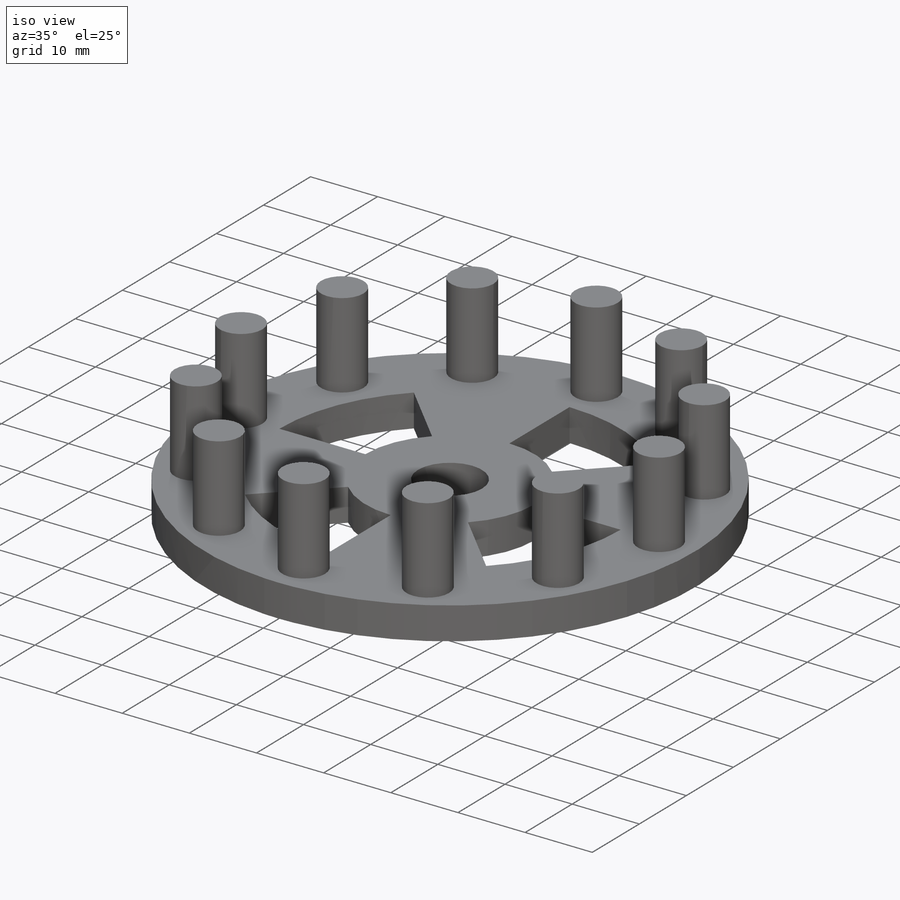
[diagram: iso view]
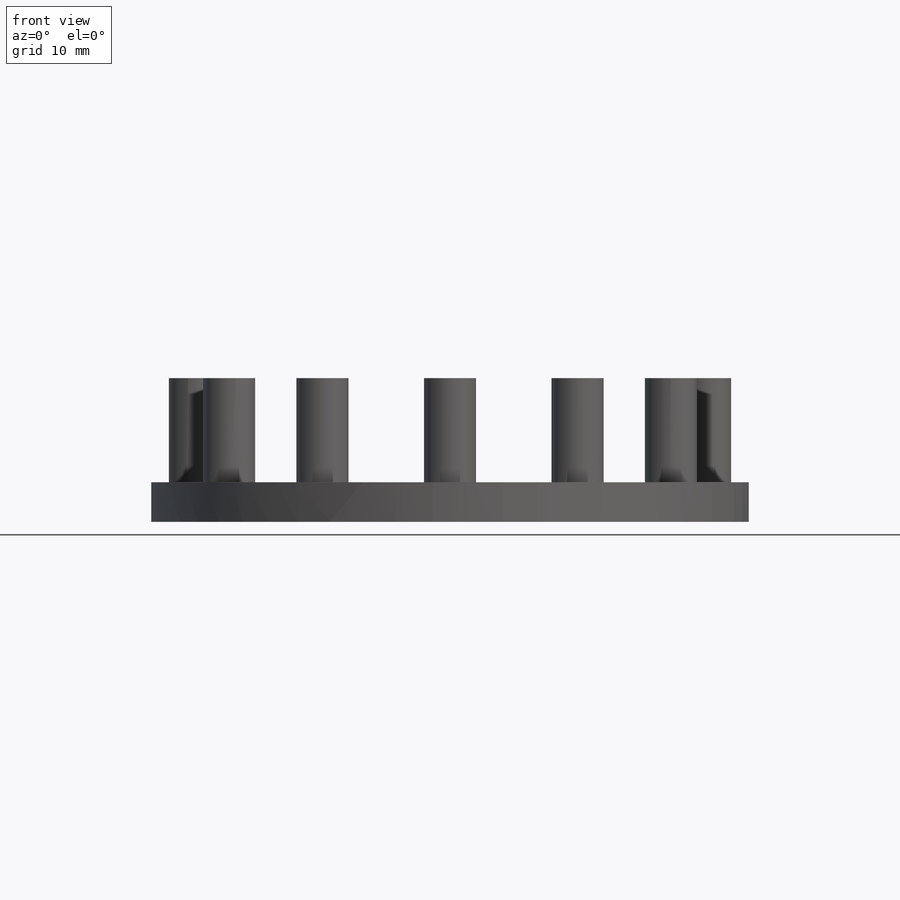
[diagram: front view]
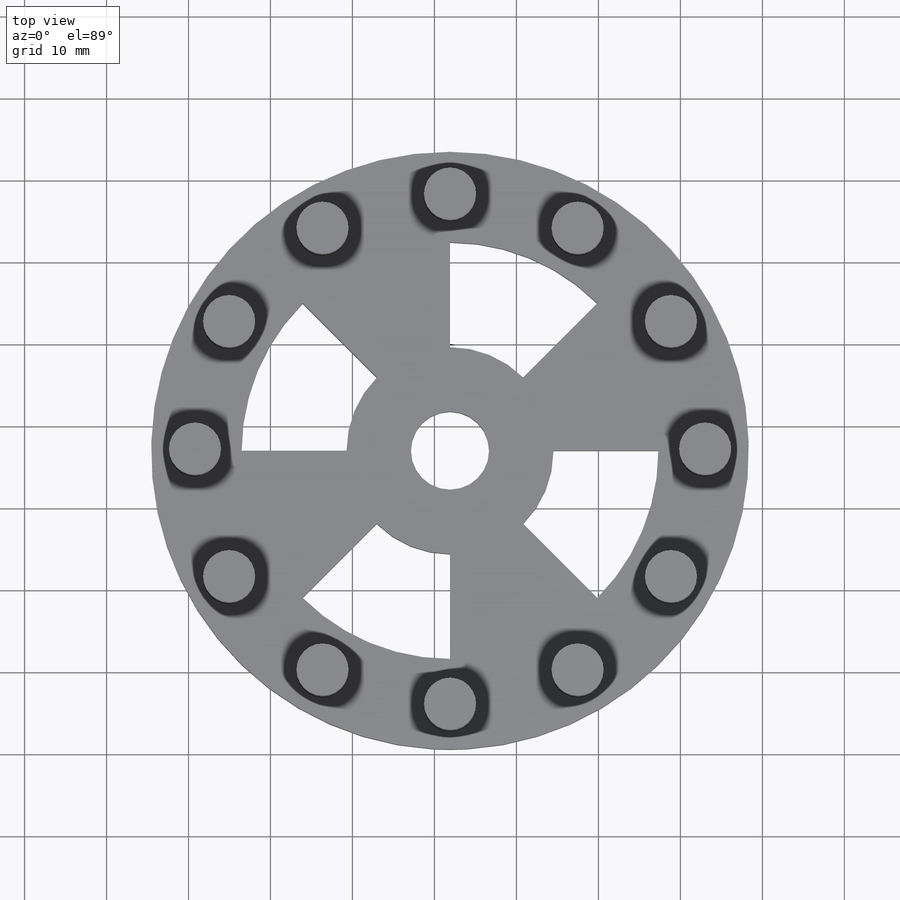
[diagram: top view]
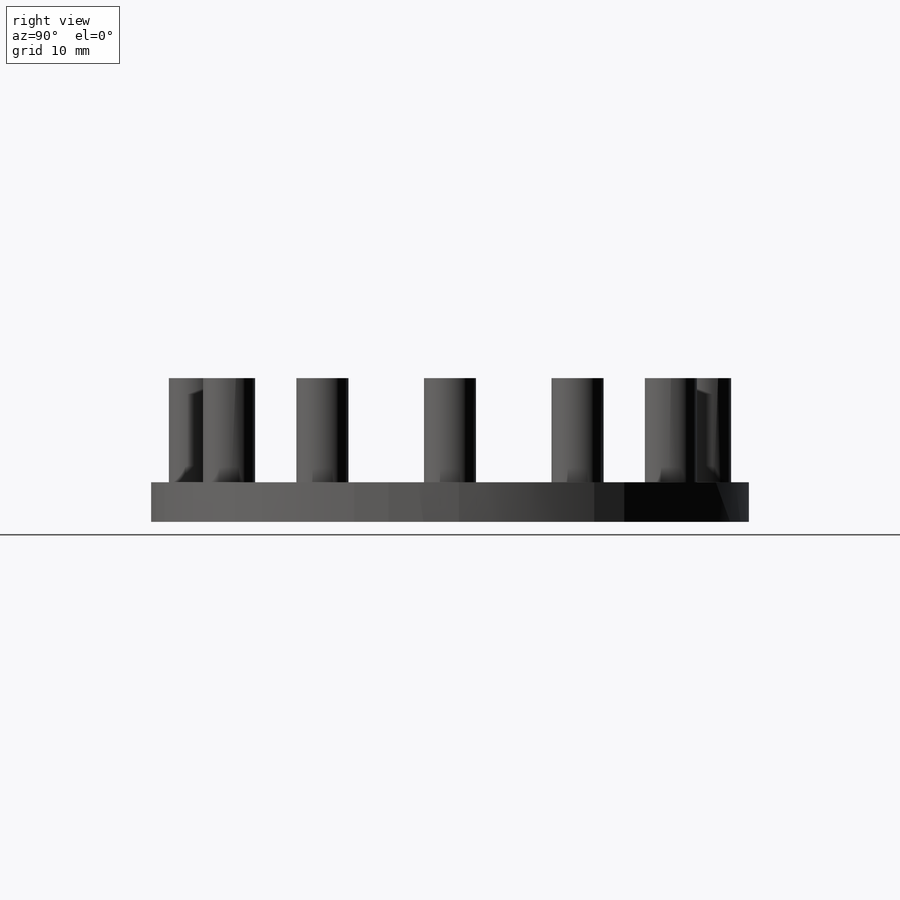
[diagram: right view]
SOLIDWORKS PART (.sldprt)
format: sldprt  version: not decoded by parser v0  size: 184,832 bytes
history: native  units: mm
features: sketch x3, extrude x2, pattern_circular x2, material x1, cut_extrude x1 (+17 scaffold rows collapsed)
feature tree (26):
  scaffold x17  (default folders/planes/origin — collapsed)
  material  "Material <not specified>"
  sketch  "Sketch1"  dims[D1=72.898mm D2=9.525mm]
  extrude  "Extrude1"  Depth=4.826mm
  sketch  "Sketch2"  dims[c1.D1=62.23mm c1.D2=3.175mm c1.D3=9.525mm c2.D2=6.35mm]
  extrude  "Extrude2"  Depth=12.7mm
  pattern_circular  "CirPattern1"  Count=12 Angle=30deg
  sketch  "Sketch3"
  cut_extrude  "Extrude3"  Depth=19.05mm
  pattern_circular  "CirPattern2"  Count=4 Angle=90deg
decode coverage: 7 of 8 modeling features carry decoded parameters
note: suppression state not decoded; provenance and decode notes live in map.json
